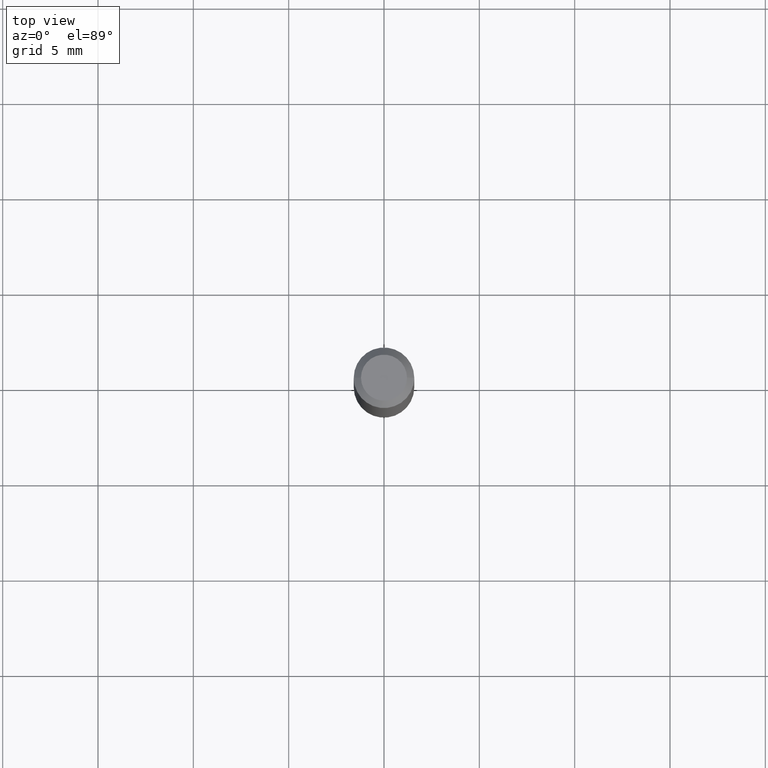
[diagram: clean part render]
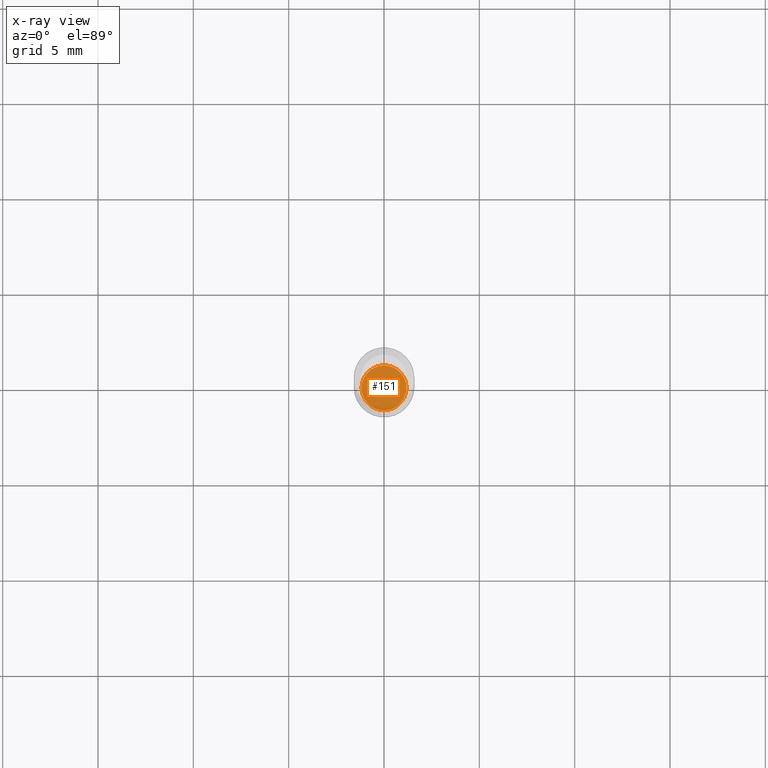
[diagram: x-ray — body ghosted, one internal face saturated and labeled with its STEP entity id]
A machine part, top view, then the same camera in x-ray: the body is ghosted and one INTERNAL B-rep face — a face not visible from any outside direction — is saturated and labeled: STEP entity #151.
In plain terms, the highlighted planar face has unit normal (-0, 0, 1).
Its self-contained STEP definition (entity closure, byte-faithful):
#4 = CARTESIAN_POINT ( 'NONE',  ( 0.04639999999999999680, -4.580125220294438201E-15, -1.219000000000000083 ) ) ;
#52 = CARTESIAN_POINT ( 'NONE',  ( -0.04639999999999999680, -3.923774695482996852E-15, -1.219000000000000083 ) ) ;
#59 = VERTEX_POINT ( 'NONE', #4 ) ;
#64 = EDGE_LOOP ( 'NONE', ( #275, #191 ) ) ;
#78 = AXIS2_PLACEMENT_3D ( 'NONE', #287, #360, #431 ) ;
#133 = AXIS2_PLACEMENT_3D ( 'NONE', #265, #444, #263 ) ;
#151 = ADVANCED_FACE ( 'NONE', ( #250 ), #213, .F. ) ;
#170 = CIRCLE ( 'NONE', #261, 0.04639999999999999680 ) ;
#178 = EDGE_CURVE ( 'NONE', #59, #244, #170, .T. ) ;
#191 = ORIENTED_EDGE ( 'NONE', *, *, #274, .F. ) ;
#192 = DIRECTION ( 'NONE',  ( 1.000000000000000000, -6.982962677686276966E-15, 0.000000000000000000 ) ) ;
#213 = PLANE ( 'NONE',  #78 ) ;
#228 = CARTESIAN_POINT ( 'NONE',  ( 2.981026474739681628E-29, -4.256115752049794517E-15, -1.219000000000000083 ) ) ;
#238 = CIRCLE ( 'NONE', #133, 0.04639999999999999680 ) ;
#244 = VERTEX_POINT ( 'NONE', #52 ) ;
#250 = FACE_OUTER_BOUND ( 'NONE', #64, .T. ) ;
#261 = AXIS2_PLACEMENT_3D ( 'NONE', #228, #400, #192 ) ;
#263 = DIRECTION ( 'NONE',  ( 1.000000000000000000, -6.982962677686276966E-15, 0.000000000000000000 ) ) ;
#265 = CARTESIAN_POINT ( 'NONE',  ( 2.981026474739681628E-29, -4.256115752049794517E-15, -1.219000000000000083 ) ) ;
#274 = EDGE_CURVE ( 'NONE', #244, #59, #238, .T. ) ;
#275 = ORIENTED_EDGE ( 'NONE', *, *, #178, .F. ) ;
#287 = CARTESIAN_POINT ( 'NONE',  ( 2.981026474739681628E-29, -4.256115752049794517E-15, -1.219000000000000083 ) ) ;
#360 = DIRECTION ( 'NONE',  ( -2.438088387897960049E-29, 3.491481338843145188E-15, 1.000000000000000000 ) ) ;
#400 = DIRECTION ( 'NONE',  ( -2.445468806185136597E-29, 3.491481338843145583E-15, 1.000000000000000000 ) ) ;
#431 = DIRECTION ( 'NONE',  ( 1.000000000000000000, -6.982962677686265922E-15, 4.876176775795935793E-29 ) ) ;
#444 = DIRECTION ( 'NONE',  ( -2.445468806185136597E-29, 3.491481338843145583E-15, 1.000000000000000000 ) ) ;